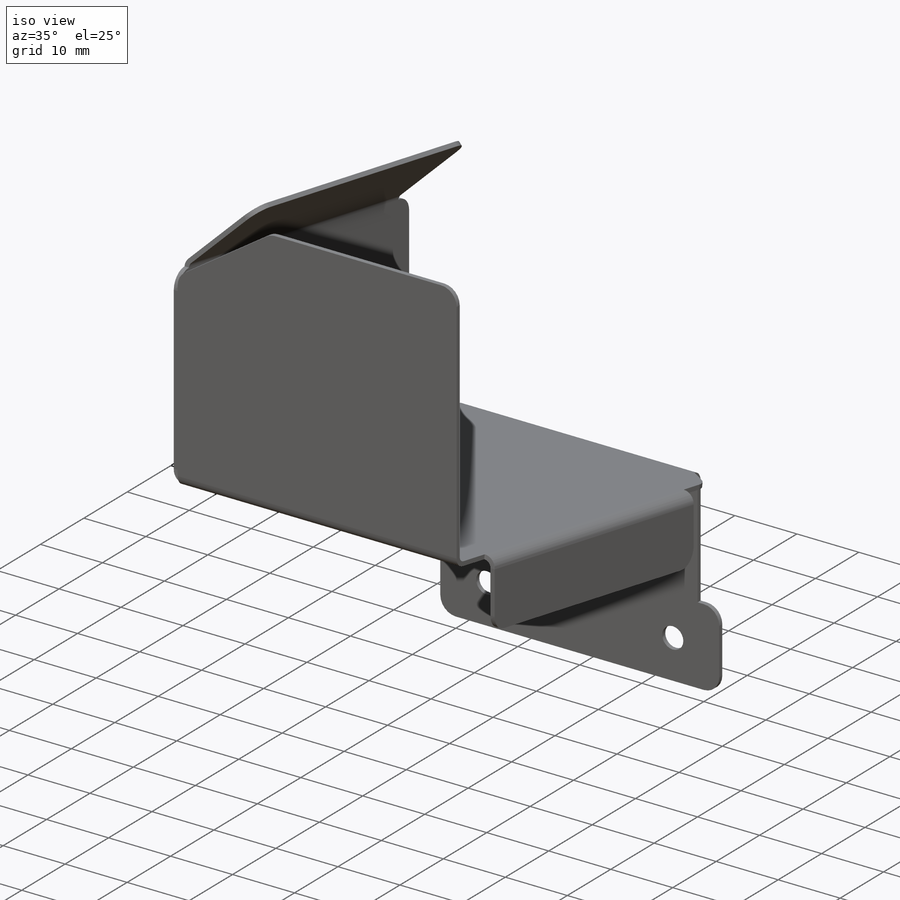
[diagram: iso view]
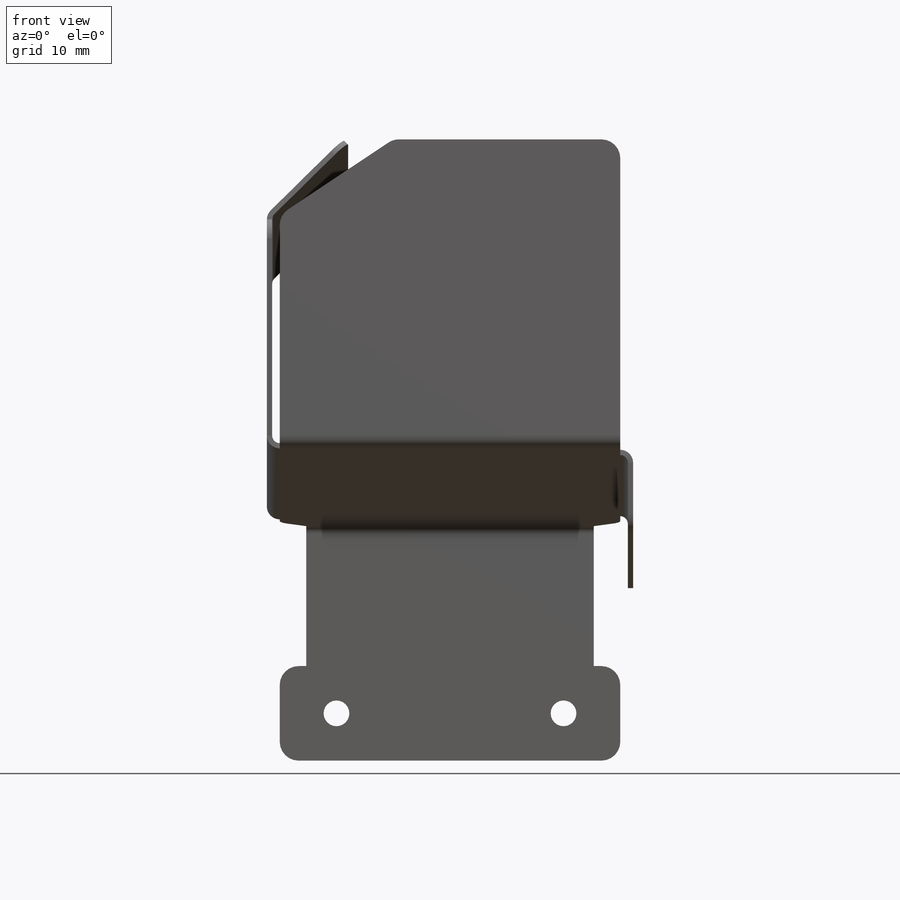
[diagram: front view]
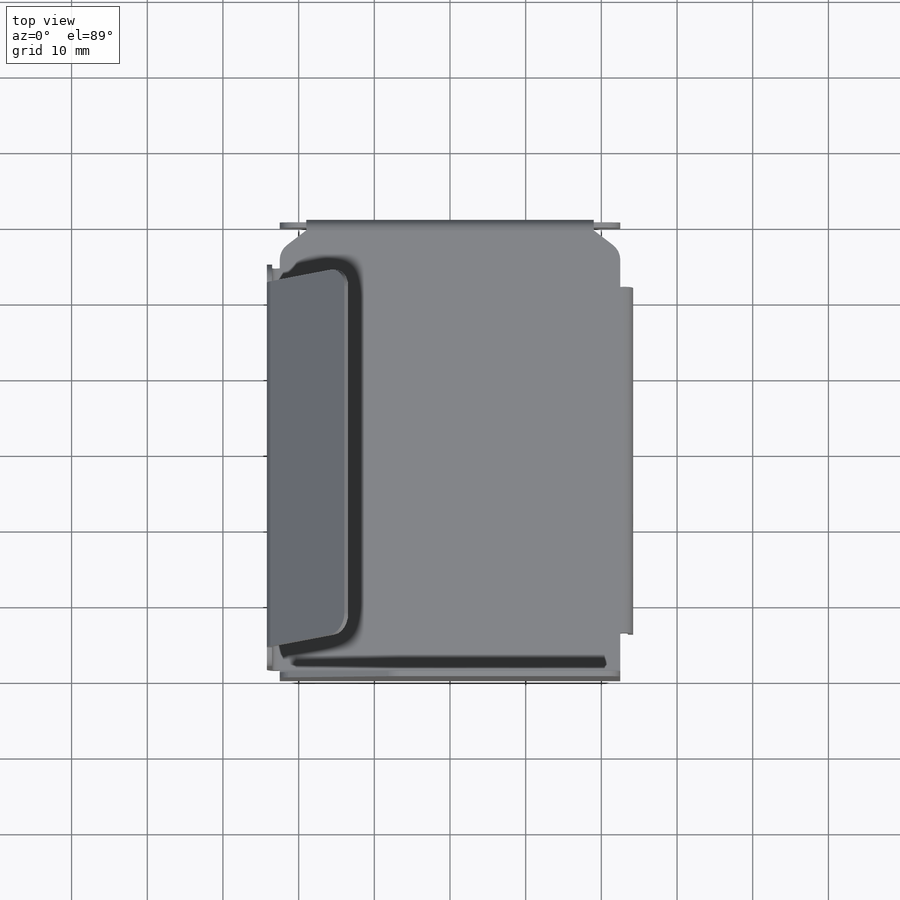
[diagram: top view]
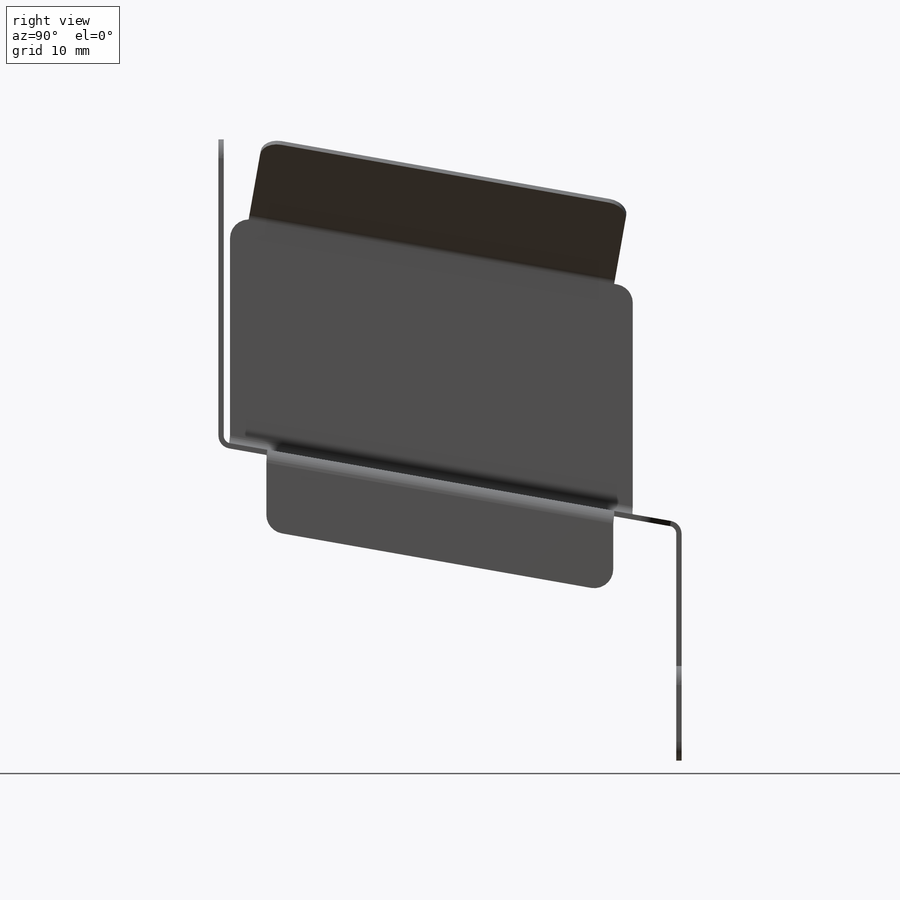
[diagram: right view]
SOLIDWORKS PART (.sldprt)
format: sldprt  version: not decoded by parser v0  size: 421,376 bytes
history: native  units: mm
features: sketch x11, sheet_metal_op x8, mirror x2, material x1, cut_extrude x1 + 5 further entries (+11 scaffold rows collapsed; 1 parser-record rows omitted)
feature tree (40):
  scaffold x11  (default folders/planes/origin — collapsed)
  material  "Plain Carbon Steel"
  sketch  "Sketch1"  dims[D1=30.0mm D2=38.0mm]
  sheet_metal_op  "Sheet-Metal1"
  sheet_metal_op  "Base-Flange1"
  sketch  "Sketch6"  dims[c1.D1=60.0mm c2.D1=1.0mm c2.D4=80.0deg c2.D5=1.0 c2.D8=0.35mm c2.D9=0.35mm c3.D1=1.0mm c3.D2=500.0mm c3.D3=0.0mm c3.D6=10.0mm c3.D7=60.0mm]
  sketch  "Sketch22"  dims[D2=25.0mm D1=22.5mm]
  sheet_metal_op  "Tab1"
  mirror  "Mirror1"  Edge-Flange2=0
  sketch  "Sketch9"  dims[D1=40.0mm D2=30.0mm D3=30.0mm]
  sheet_metal_op  "EdgeBend2"  Edge-Flange3=0
  sheet_metal_op  "EdgeBend6"
  sketch  "Sketch24"  dims[c1.D1=~29.544233mm c2.D1=100.0deg c2.D2=30.0mm c2.D3=2.5mm c3.D1=1.0mm c3.D2=500.0mm c3.D3=0.0mm c3.D6=10.0mm c3.D7=~29.544233mm c3.Edge-Flange5=0.0]
  sheet_metal_op  "EdgeBend7"
  sketch  "Sketch26"  dims[c1.D1=2.5mm c1.D2=2.5mm c2.D1=1.0mm c2.D2=500.0mm c2.D3=0.0mm c2.D6=10.0mm c2.D7=14.2mm c2.Edge-Flange4=0.0]
  sheet_metal_op  "EdgeBend8"
  sketch  "Sketch28"  dims[c1.D1=5.0mm c1.D2=5.0mm c1.D3=10.0mm c1.D4=10.0mm c2.D4=80.0deg c2.D1=1.0mm c2.D2=500.0mm c2.D3=0.0mm c2.D6=10.0mm c2.D7=~9.848078mm]
  sketch  "Sketch29"  dims[D1=12.5mm D2=22.5mm]
  sheet_metal_op  "Tab2"
  mirror  "Mirror2"
  sketch  "Sketch32"  dims[D2=3.4mm D1=30.0mm]
  cut_extrude  "Cut-Extrude3"  Depth=2.5mm
  "Flat-Pattern1"
  sketch  "Bend-Lines1"
  sketch  "Bounding-Box1"
  "Flatten-<EdgeBend2>1"
  "Flatten-<EdgeBend6>1"
  "Flatten-<EdgeBend7>1"
  "Flatten-<EdgeBend8>1"
  parser-record x1  (decoder bookkeeping rows leaked as tree rows — omitted from the tree; the rows remain in map.json)
decode coverage: 12 of 22 modeling features carry decoded parameters; 5 rows unclassified (native names shown)
note: ~ marks probable driven/reference dimensions
note: suppression state not decoded; provenance and decode notes live in map.json
